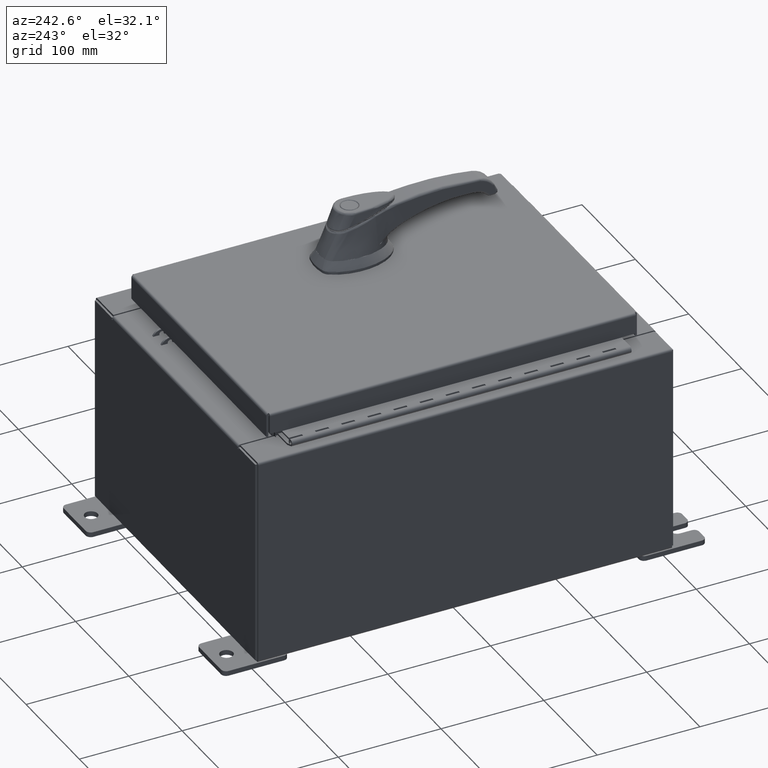
[diagram: clean part render]
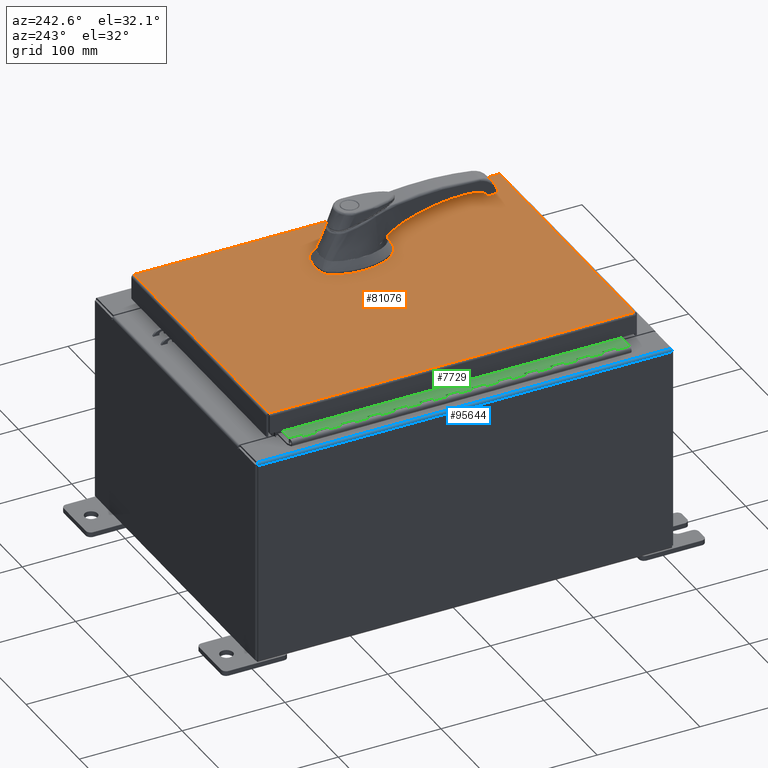
[diagram: same view with three faces highlighted in distinct colors, each labeled with its STEP entity id]
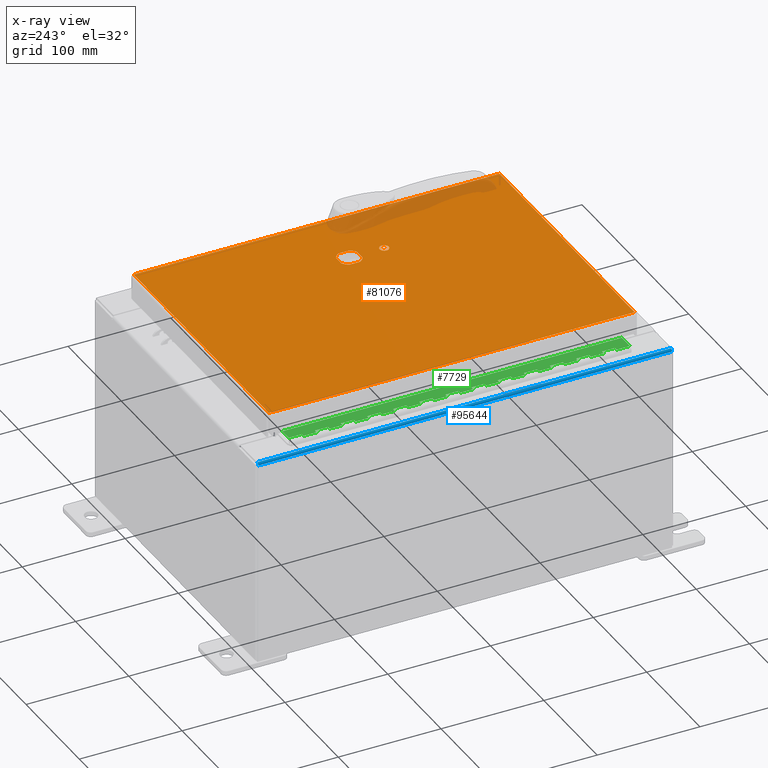
[diagram: x-ray of the same camera — body ghosted, the three highlighted faces saturated]
A machine part, auxiliary view with three faces highlighted in distinct colors.
The next image is the same camera in x-ray (body ghosted, the three faces saturated) — at least one of them is partly hidden behind the body in this view.
Their STEP definitions:

[orange] entity #81076 — the highlighted planar face has unit normal (0, 0, -1).
#348 = DIRECTION ( 'NONE',  ( -0.0000000000000000000, 0.0000000000000000000, 1.000000000000000000 ) ) ;
#2514 = AXIS2_PLACEMENT_3D ( 'NONE', #80235, #348, #63107 ) ;
#4080 = LINE ( 'NONE', #82770, #26287 ) ;
#4376 = DIRECTION ( 'NONE',  ( 0.0000000000000000000, 1.000000000000000000, 0.0000000000000000000 ) ) ;
#4477 = VECTOR ( 'NONE', #4538, 39.37007874015748100 ) ;
#4538 = DIRECTION ( 'NONE',  ( 0.0000000000000000000, -1.000000000000000000, 0.0000000000000000000 ) ) ;
#4999 = ORIENTED_EDGE ( 'NONE', *, *, #86315, .F. ) ;
#5107 = DIRECTION ( 'NONE',  ( 1.000000000000000000, -0.0000000000000000000, -0.0000000000000000000 ) ) ;
#5592 = DIRECTION ( 'NONE',  ( -0.0000000000000000000, 0.0000000000000000000, 1.000000000000000000 ) ) ;
#8438 = LINE ( 'NONE', #57246, #52328 ) ;
#8789 = LINE ( 'NONE', #71579, #28326 ) ;
#9634 = EDGE_CURVE ( 'NONE', #51594, #38232, #85628, .T. ) ;
#11769 = EDGE_CURVE ( 'NONE', #96796, #61571, #102451, .T. ) ;
#11790 = ORIENTED_EDGE ( 'NONE', *, *, #94222, .F. ) ;
#12387 = ORIENTED_EDGE ( 'NONE', *, *, #69628, .T. ) ;
#12495 = AXIS2_PLACEMENT_3D ( 'NONE', #81563, #32585, #89997 ) ;
#12592 = CARTESIAN_POINT ( 'NONE',  ( -4.990300000000000400, 7.006300000000000400, -2.048885995248197400E-016 ) ) ;
#13237 = EDGE_LOOP ( 'NONE', ( #59540, #4999 ) ) ;
#16286 = DIRECTION ( 'NONE',  ( 1.000000000000000000, 0.0000000000000000000, 0.0000000000000000000 ) ) ;
#17110 = AXIS2_PLACEMENT_3D ( 'NONE', #78192, #86613, #62047 ) ;
#19110 = CARTESIAN_POINT ( 'NONE',  ( 4.990299999999998600, 7.006300000000000400, -2.219626494852214000E-016 ) ) ;
#19221 = ORIENTED_EDGE ( 'NONE', *, *, #67699, .F. ) ;
#21255 = CARTESIAN_POINT ( 'NONE',  ( 4.990299999999998600, -7.006300000000000400, 3.244069492476312400E-016 ) ) ;
#21445 = DIRECTION ( 'NONE',  ( -0.0000000000000000000, 0.0000000000000000000, 1.000000000000000000 ) ) ;
#21894 = LINE ( 'NONE', #94538, #62833 ) ;
#22307 = CARTESIAN_POINT ( 'NONE',  ( 2.377772629243688900, 0.4029999999999252000, 0.0000000000000000000 ) ) ;
#22475 = EDGE_CURVE ( 'NONE', #79886, #58894, #37583, .T. ) ;
#22657 = VERTEX_POINT ( 'NONE', #23558 ) ;
#23558 = CARTESIAN_POINT ( 'NONE',  ( 2.980999999999924400, 0.2002273707563080300, 0.0000000000000000000 ) ) ;
#23582 = ORIENTED_EDGE ( 'NONE', *, *, #59944, .F. ) ;
#25174 = EDGE_CURVE ( 'NONE', #42653, #79105, #91242, .T. ) ;
#26287 = VECTOR ( 'NONE', #41935, 39.37007874015748100 ) ;
#26696 = LINE ( 'NONE', #12592, #4477 ) ;
#27386 = CARTESIAN_POINT ( 'NONE',  ( 2.778227370756308100, -0.4029999999999252000, 0.0000000000000000000 ) ) ;
#27885 = LINE ( 'NONE', #97267, #68666 ) ;
#28326 = VECTOR ( 'NONE', #105201, 39.37007874015748100 ) ;
#30640 = CARTESIAN_POINT ( 'NONE',  ( 2.175000000000072700, 0.2002273707563079800, 0.0000000000000000000 ) ) ;
#31076 = CARTESIAN_POINT ( 'NONE',  ( 2.577999999999998500, 0.0000000000000000000, 0.0000000000000000000 ) ) ;
#32487 = ORIENTED_EDGE ( 'NONE', *, *, #48897, .T. ) ;
#32585 = DIRECTION ( 'NONE',  ( -0.0000000000000000000, 0.0000000000000000000, 1.000000000000000000 ) ) ;
#32735 = DIRECTION ( 'NONE',  ( -0.0000000000000000000, 0.0000000000000000000, 1.000000000000000000 ) ) ;
#33268 = ORIENTED_EDGE ( 'NONE', *, *, #50813, .T. ) ;
#33894 = EDGE_CURVE ( 'NONE', #34075, #51594, #8438, .T. ) ;
#34075 = VERTEX_POINT ( 'NONE', #66442 ) ;
#34956 = EDGE_CURVE ( 'NONE', #96773, #39788, #27885, .T. ) ;
#37346 = FACE_BOUND ( 'NONE', #99640, .T. ) ;
#37583 = CIRCLE ( 'NONE', #43460, 0.4499999999999156900 ) ;
#38232 = VERTEX_POINT ( 'NONE', #41117 ) ;
#39304 = DIRECTION ( 'NONE',  ( 1.000000000000000000, 0.0000000000000000000, 0.0000000000000000000 ) ) ;
#39788 = VERTEX_POINT ( 'NONE', #40084 ) ;
#39849 = CARTESIAN_POINT ( 'NONE',  ( 2.980999999999924400, 4.067195627826724000E-015, 0.0000000000000000000 ) ) ;
#40084 = CARTESIAN_POINT ( 'NONE',  ( -4.990300000000000400, 7.006300000000000400, -2.048885995248197400E-016 ) ) ;
#41117 = CARTESIAN_POINT ( 'NONE',  ( 2.980999999999924800, -0.2002273707563079800, 0.0000000000000000000 ) ) ;
#41820 = CARTESIAN_POINT ( 'NONE',  ( -4.990300000000000400, -7.006300000000000400, -2.219626494852214000E-016 ) ) ;
#41935 = DIRECTION ( 'NONE',  ( 0.0000000000000000000, -1.000000000000000000, 0.0000000000000000000 ) ) ;
#42246 = ORIENTED_EDGE ( 'NONE', *, *, #9634, .F. ) ;
#42653 = VERTEX_POINT ( 'NONE', #51190 ) ;
#43460 = AXIS2_PLACEMENT_3D ( 'NONE', #70400, #21445, #78738 ) ;
#44481 = CARTESIAN_POINT ( 'NONE',  ( 2.175000000000072700, -0.2002273707563079800, 0.0000000000000000000 ) ) ;
#45669 = PLANE ( 'NONE',  #17110 ) ;
#47675 = AXIS2_PLACEMENT_3D ( 'NONE', #81740, #32735, #90150 ) ;
#48757 = VERTEX_POINT ( 'NONE', #79181 ) ;
#48897 = EDGE_CURVE ( 'NONE', #22657, #38232, #81952, .T. ) ;
#50813 = EDGE_CURVE ( 'NONE', #61571, #96773, #21894, .T. ) ;
#51190 = CARTESIAN_POINT ( 'NONE',  ( 2.749499999999998500, -1.338000000000000100, 0.0000000000000000000 ) ) ;
#51594 = VERTEX_POINT ( 'NONE', #27386 ) ;
#52328 = VECTOR ( 'NONE', #16286, 39.37007874015748100 ) ;
#53749 = CARTESIAN_POINT ( 'NONE',  ( 2.406499999999998500, -1.338000000000000100, 0.0000000000000000000 ) ) ;
#54995 = CARTESIAN_POINT ( 'NONE',  ( 2.577999999999998500, 0.0000000000000000000, 0.0000000000000000000 ) ) ;
#56426 = FACE_OUTER_BOUND ( 'NONE', #56553, .T. ) ;
#56553 = EDGE_LOOP ( 'NONE', ( #88076, #33268, #101324, #12387 ) ) ;
#56880 = ORIENTED_EDGE ( 'NONE', *, *, #22475, .F. ) ;
#57204 = AXIS2_PLACEMENT_3D ( 'NONE', #54995, #5592, #63141 ) ;
#57246 = CARTESIAN_POINT ( 'NONE',  ( 0.0000000000000000000, -0.4029999999999252000, 0.0000000000000000000 ) ) ;
#57503 = CIRCLE ( 'NONE', #12495, 0.1715000000000000700 ) ;
#58894 = VERTEX_POINT ( 'NONE', #30640 ) ;
#59540 = ORIENTED_EDGE ( 'NONE', *, *, #25174, .F. ) ;
#59559 = VERTEX_POINT ( 'NONE', #44481 ) ;
#59944 = EDGE_CURVE ( 'NONE', #58894, #59559, #4080, .T. ) ;
#60108 = VECTOR ( 'NONE', #80593, 39.37007874015748100 ) ;
#61571 = VERTEX_POINT ( 'NONE', #21255 ) ;
#62047 = DIRECTION ( 'NONE',  ( -1.000000000000000000, 0.0000000000000000000, -0.0000000000000000000 ) ) ;
#62833 = VECTOR ( 'NONE', #4376, 39.37007874015748100 ) ;
#63107 = DIRECTION ( 'NONE',  ( 1.000000000000000000, 0.0000000000000000000, 0.0000000000000000000 ) ) ;
#63141 = DIRECTION ( 'NONE',  ( 1.000000000000000000, 0.0000000000000000000, 0.0000000000000000000 ) ) ;
#66442 = CARTESIAN_POINT ( 'NONE',  ( 2.377772629243688900, -0.4029999999999252000, 0.0000000000000000000 ) ) ;
#67699 = EDGE_CURVE ( 'NONE', #59559, #34075, #98932, .T. ) ;
#68666 = VECTOR ( 'NONE', #105732, 39.37007874015748100 ) ;
#69628 = EDGE_CURVE ( 'NONE', #39788, #96796, #26696, .T. ) ;
#70400 = CARTESIAN_POINT ( 'NONE',  ( 2.577999999999998500, 0.0000000000000000000, 0.0000000000000000000 ) ) ;
#71579 = CARTESIAN_POINT ( 'NONE',  ( 0.0000000000000000000, 0.4029999999999252000, 0.0000000000000000000 ) ) ;
#71748 = EDGE_CURVE ( 'NONE', #22657, #48757, #88125, .T. ) ;
#74379 = AXIS2_PLACEMENT_3D ( 'NONE', #31076, #88445, #39304 ) ;
#75826 = ORIENTED_EDGE ( 'NONE', *, *, #71748, .F. ) ;
#76796 = CARTESIAN_POINT ( 'NONE',  ( -4.990300000000000400, -7.006300000000000400, -2.219626494852214000E-016 ) ) ;
#77833 = ORIENTED_EDGE ( 'NONE', *, *, #33894, .F. ) ;
#78192 = CARTESIAN_POINT ( 'NONE',  ( 0.0000000000000000000, 0.0000000000000000000, 0.0000000000000000000 ) ) ;
#78738 = DIRECTION ( 'NONE',  ( 1.000000000000000000, 0.0000000000000000000, 0.0000000000000000000 ) ) ;
#79105 = VERTEX_POINT ( 'NONE', #53749 ) ;
#79181 = CARTESIAN_POINT ( 'NONE',  ( 2.778227370756308100, 0.4029999999999252000, 0.0000000000000000000 ) ) ;
#79886 = VERTEX_POINT ( 'NONE', #22307 ) ;
#80235 = CARTESIAN_POINT ( 'NONE',  ( 2.577999999999998500, 0.0000000000000000000, 0.0000000000000000000 ) ) ;
#80593 = DIRECTION ( 'NONE',  ( 1.364372904336406500E-015, -1.000000000000000000, 0.0000000000000000000 ) ) ;
#81076 = ADVANCED_FACE ( 'NONE', ( #100470, #56426, #37346 ), #45669, .F. ) ;
#81563 = CARTESIAN_POINT ( 'NONE',  ( 2.577999999999998500, -1.338000000000000100, 0.0000000000000000000 ) ) ;
#81740 = CARTESIAN_POINT ( 'NONE',  ( 2.577999999999998500, -1.338000000000000100, 0.0000000000000000000 ) ) ;
#81952 = LINE ( 'NONE', #39849, #60108 ) ;
#82770 = CARTESIAN_POINT ( 'NONE',  ( 2.175000000000072700, 0.0000000000000000000, 0.0000000000000000000 ) ) ;
#85628 = CIRCLE ( 'NONE', #2514, 0.4499999999999156900 ) ;
#86315 = EDGE_CURVE ( 'NONE', #79105, #42653, #57503, .T. ) ;
#86613 = DIRECTION ( 'NONE',  ( 0.0000000000000000000, 0.0000000000000000000, -1.000000000000000000 ) ) ;
#88076 = ORIENTED_EDGE ( 'NONE', *, *, #11769, .T. ) ;
#88125 = CIRCLE ( 'NONE', #74379, 0.4499999999999156900 ) ;
#88445 = DIRECTION ( 'NONE',  ( -0.0000000000000000000, 0.0000000000000000000, 1.000000000000000000 ) ) ;
#89997 = DIRECTION ( 'NONE',  ( 1.000000000000000000, 0.0000000000000000000, 0.0000000000000000000 ) ) ;
#90150 = DIRECTION ( 'NONE',  ( 1.000000000000000000, 0.0000000000000000000, 0.0000000000000000000 ) ) ;
#91242 = CIRCLE ( 'NONE', #47675, 0.1715000000000000700 ) ;
#94222 = EDGE_CURVE ( 'NONE', #48757, #79886, #8789, .T. ) ;
#94538 = CARTESIAN_POINT ( 'NONE',  ( 4.990299999999998600, -7.006300000000000400, 3.244069492476312400E-016 ) ) ;
#96773 = VERTEX_POINT ( 'NONE', #19110 ) ;
#96796 = VERTEX_POINT ( 'NONE', #76796 ) ;
#97267 = CARTESIAN_POINT ( 'NONE',  ( 4.990299999999998600, 7.006300000000000400, -2.219626494852214000E-016 ) ) ;
#98932 = CIRCLE ( 'NONE', #57204, 0.4499999999999156900 ) ;
#99640 = EDGE_LOOP ( 'NONE', ( #32487, #42246, #77833, #19221, #23582, #56880, #11790, #75826 ) ) ;
#99800 = VECTOR ( 'NONE', #5107, 39.37007874015748100 ) ;
#100470 = FACE_BOUND ( 'NONE', #13237, .T. ) ;
#101324 = ORIENTED_EDGE ( 'NONE', *, *, #34956, .T. ) ;
#102451 = LINE ( 'NONE', #41820, #99800 ) ;
#105201 = DIRECTION ( 'NONE',  ( -1.000000000000000000, 0.0000000000000000000, 0.0000000000000000000 ) ) ;
#105732 = DIRECTION ( 'NONE',  ( -1.000000000000000000, -0.0000000000000000000, -0.0000000000000000000 ) ) ;

[blue] entity #95644 — the highlighted cylindrical surface (edge-blend (fillet) strip) has radius 2.2276 mm, axis along (-0, -1, -0).
#5973 = DIRECTION ( 'NONE',  ( 0.0000000000000000000, 1.000000000000000000, 0.0000000000000000000 ) ) ;
#6204 = DIRECTION ( 'NONE',  ( -0.0000000000000000000, -1.000000000000000000, -0.0000000000000000000 ) ) ;
#8452 = LINE ( 'NONE', #88095, #93536 ) ;
#10289 = AXIS2_PLACEMENT_3D ( 'NONE', #47385, #6204, #95997 ) ;
#13279 = VECTOR ( 'NONE', #16917, 39.37007874015748100 ) ;
#16383 = CYLINDRICAL_SURFACE ( 'NONE', #10289, 0.08770000000000026400 ) ;
#16917 = DIRECTION ( 'NONE',  ( -0.0000000000000000000, 1.000000000000000000, -0.0000000000000000000 ) ) ;
#21483 = CARTESIAN_POINT ( 'NONE',  ( -5.912300000000028500, -7.925300000000000000, 7.925300000000000000 ) ) ;
#23945 = CARTESIAN_POINT ( 'NONE',  ( -5.912300000000028500, 7.925299999999998200, 7.837599999999999200 ) ) ;
#26437 = EDGE_CURVE ( 'NONE', #43878, #84969, #72806, .T. ) ;
#28046 = EDGE_CURVE ( 'NONE', #84969, #56872, #8452, .T. ) ;
#28753 = CIRCLE ( 'NONE', #30974, 0.08770000000000026400 ) ;
#30974 = AXIS2_PLACEMENT_3D ( 'NONE', #23945, #81260, #32269 ) ;
#32269 = DIRECTION ( 'NONE',  ( 0.0000000000000000000, 0.0000000000000000000, -1.000000000000000000 ) ) ;
#35368 = LINE ( 'NONE', #90332, #13279 ) ;
#35886 = FACE_OUTER_BOUND ( 'NONE', #74237, .T. ) ;
#38168 = ORIENTED_EDGE ( 'NONE', *, *, #26437, .F. ) ;
#39927 = EDGE_CURVE ( 'NONE', #43878, #59012, #35368, .T. ) ;
#43878 = VERTEX_POINT ( 'NONE', #21483 ) ;
#47385 = CARTESIAN_POINT ( 'NONE',  ( -5.912300000000028500, -7.925300000000000900, 7.837599999999999200 ) ) ;
#47766 = CARTESIAN_POINT ( 'NONE',  ( -5.912300000000028500, -7.925300000000000000, 7.837599999999999200 ) ) ;
#48873 = ORIENTED_EDGE ( 'NONE', *, *, #39927, .T. ) ;
#55952 = DIRECTION ( 'NONE',  ( 0.0000000000000000000, 0.0000000000000000000, -1.000000000000000000 ) ) ;
#56872 = VERTEX_POINT ( 'NONE', #91697 ) ;
#59012 = VERTEX_POINT ( 'NONE', #71980 ) ;
#71980 = CARTESIAN_POINT ( 'NONE',  ( -5.912300000000028500, 7.925299999999998200, 7.925300000000000000 ) ) ;
#72806 = CIRCLE ( 'NONE', #87654, 0.08770000000000026400 ) ;
#74237 = EDGE_LOOP ( 'NONE', ( #83400, #38168, #48873, #76864 ) ) ;
#76864 = ORIENTED_EDGE ( 'NONE', *, *, #92965, .F. ) ;
#81260 = DIRECTION ( 'NONE',  ( 0.0000000000000000000, 1.000000000000000000, 0.0000000000000000000 ) ) ;
#83400 = ORIENTED_EDGE ( 'NONE', *, *, #28046, .F. ) ;
#84969 = VERTEX_POINT ( 'NONE', #100060 ) ;
#87654 = AXIS2_PLACEMENT_3D ( 'NONE', #47766, #105601, #55952 ) ;
#88095 = CARTESIAN_POINT ( 'NONE',  ( -6.000000000000029300, -7.925300000000000900, 7.837599999999999200 ) ) ;
#90332 = CARTESIAN_POINT ( 'NONE',  ( -5.912300000000028500, 7.925299999999998200, 7.925300000000000000 ) ) ;
#91697 = CARTESIAN_POINT ( 'NONE',  ( -6.000000000000029300, 7.925299999999998200, 7.837599999999999200 ) ) ;
#92965 = EDGE_CURVE ( 'NONE', #56872, #59012, #28753, .T. ) ;
#93536 = VECTOR ( 'NONE', #5973, 39.37007874015748100 ) ;
#95644 = ADVANCED_FACE ( 'NONE', ( #35886 ), #16383, .T. ) ;
#95997 = DIRECTION ( 'NONE',  ( -1.245996804407870000E-014, 0.0000000000000000000, 1.000000000000000000 ) ) ;
#100060 = CARTESIAN_POINT ( 'NONE',  ( -6.000000000000029300, -7.925300000000000000, 7.837599999999999200 ) ) ;
#105601 = DIRECTION ( 'NONE',  ( -0.0000000000000000000, -1.000000000000000000, -0.0000000000000000000 ) ) ;

[green] entity #7729 — the highlighted planar face has unit normal (-0, -0, 1).
#273 = VERTEX_POINT ( 'NONE', #45626 ) ;
#1068 = ORIENTED_EDGE ( 'NONE', *, *, #103844, .T. ) ;
#1218 = CARTESIAN_POINT ( 'NONE',  ( -0.6869999999999982800, 0.5504999999999997700, -1.499999999999999800 ) ) ;
#1539 = LINE ( 'NONE', #62559, #64611 ) ;
#1590 = VERTEX_POINT ( 'NONE', #43488 ) ;
#1636 = VECTOR ( 'NONE', #69516, 39.37007874015748100 ) ;
#2115 = ORIENTED_EDGE ( 'NONE', *, *, #16323, .F. ) ;
#2257 = DIRECTION ( 'NONE',  ( 0.0000000000000000000, -0.0000000000000000000, -1.000000000000000000 ) ) ;
#2720 = CARTESIAN_POINT ( 'NONE',  ( -0.6869999999999982800, 0.5504999999999997700, -4.000000000000000000 ) ) ;
#2908 = EDGE_CURVE ( 'NONE', #18678, #5825, #67860, .T. ) ;
#2992 = VECTOR ( 'NONE', #42687, 39.37007874015748100 ) ;
#3135 = VECTOR ( 'NONE', #15873, 39.37007874015748100 ) ;
#3254 = EDGE_CURVE ( 'NONE', #106390, #70275, #93845, .T. ) ;
#3338 = ORIENTED_EDGE ( 'NONE', *, *, #28117, .T. ) ;
#4078 = VECTOR ( 'NONE', #62335, 39.37007874015748100 ) ;
#4098 = VERTEX_POINT ( 'NONE', #24273 ) ;
#4276 = DIRECTION ( 'NONE',  ( 0.0000000000000000000, -0.0000000000000000000, -1.000000000000000000 ) ) ;
#4522 = DIRECTION ( 'NONE',  ( 0.0000000000000000000, -0.0000000000000000000, -1.000000000000000000 ) ) ;
#4584 = CARTESIAN_POINT ( 'NONE',  ( -0.6869999999999978300, 0.6754999999999996600, -0.5000000000000000000 ) ) ;
#4634 = VERTEX_POINT ( 'NONE', #41936 ) ;
#4978 = EDGE_LOOP ( 'NONE', ( #97478, #1068, #18255, #81031, #20383, #97529, #105139, #64630, #25732, #43316, #105216, #34078, #62241, #26738, #78132, #87951, #22155, #14159, #51713, #57693, #102540, #57063, #39161, #17952, #37359, #2115, #102101, #57591, #26544, #44919, #84541, #33473, #100370, #55065, #67520, #42523, #66538, #81154, #100365, #62768, #27539, #20580, #106107, #20058, #3338, #11474, #75160, #8093, #93025, #42034, #42365, #79696, #81120, #96425 ) ) ;
#5085 = VERTEX_POINT ( 'NONE', #104873 ) ;
#5190 = VERTEX_POINT ( 'NONE', #2720 ) ;
#5594 = CARTESIAN_POINT ( 'NONE',  ( -0.6869999999999982800, 0.5504999999999997700, -1.000000000000000000 ) ) ;
#5825 = VERTEX_POINT ( 'NONE', #86594 ) ;
#6338 = CARTESIAN_POINT ( 'NONE',  ( -0.6869999999999973900, 0.8004999999999995500, -6.499999999999999100 ) ) ;
#7309 = VERTEX_POINT ( 'NONE', #9787 ) ;
#7729 = ADVANCED_FACE ( 'NONE', ( #29245 ), #103245, .T. ) ;
#7842 = VECTOR ( 'NONE', #47165, 39.37007874015748100 ) ;
#8093 = ORIENTED_EDGE ( 'NONE', *, *, #32307, .F. ) ;
#8482 = VERTEX_POINT ( 'NONE', #95871 ) ;
#8592 = DIRECTION ( 'NONE',  ( 0.0000000000000000000, 0.0000000000000000000, 1.000000000000000000 ) ) ;
#8629 = CARTESIAN_POINT ( 'NONE',  ( -0.6869999999999978300, 0.6754999999999996600, -4.000000000000000000 ) ) ;
#8830 = LINE ( 'NONE', #99816, #96530 ) ;
#9016 = VECTOR ( 'NONE', #36131, 39.37007874015748100 ) ;
#9297 = LINE ( 'NONE', #53716, #50637 ) ;
#9315 = VECTOR ( 'NONE', #93235, 39.37007874015748100 ) ;
#9759 = VECTOR ( 'NONE', #21898, 39.37007874015748100 ) ;
#9787 = CARTESIAN_POINT ( 'NONE',  ( -0.6869999999999978300, 0.6754999999999996600, 0.0000000000000000000 ) ) ;
#10046 = VECTOR ( 'NONE', #73305, 39.37007874015748100 ) ;
#10373 = VECTOR ( 'NONE', #94996, 39.37007874015748100 ) ;
#11307 = CARTESIAN_POINT ( 'NONE',  ( -0.6869999999999978300, 0.6754999999999996600, -9.500000000000000000 ) ) ;
#11474 = ORIENTED_EDGE ( 'NONE', *, *, #88062, .F. ) ;
#11912 = EDGE_CURVE ( 'NONE', #91322, #47803, #72334, .T. ) ;
#12002 = CARTESIAN_POINT ( 'NONE',  ( -0.6869999999999978300, 0.6754999999999996600, -2.000000000000000000 ) ) ;
#12664 = EDGE_CURVE ( 'NONE', #43414, #63100, #99698, .T. ) ;
#12854 = EDGE_CURVE ( 'NONE', #43414, #1590, #23636, .T. ) ;
#13276 = VECTOR ( 'NONE', #55901, 39.37007874015748100 ) ;
#14159 = ORIENTED_EDGE ( 'NONE', *, *, #62914, .F. ) ;
#14247 = DIRECTION ( 'NONE',  ( 0.0000000000000000000, -0.0000000000000000000, -1.000000000000000000 ) ) ;
#14848 = CARTESIAN_POINT ( 'NONE',  ( -0.6870000000000022800, -0.6245000000000003900, 0.0000000000000000000 ) ) ;
#15105 = EDGE_CURVE ( 'NONE', #99991, #17599, #92833, .T. ) ;
#15601 = VERTEX_POINT ( 'NONE', #19207 ) ;
#15873 = DIRECTION ( 'NONE',  ( 3.369016658928398200E-015, 1.000000000000000000, 0.0000000000000000000 ) ) ;
#16323 = EDGE_CURVE ( 'NONE', #99967, #17599, #94000, .T. ) ;
#16781 = CARTESIAN_POINT ( 'NONE',  ( -0.6869999999999978300, 0.6754999999999996600, -7.499999999999999100 ) ) ;
#17353 = VERTEX_POINT ( 'NONE', #35271 ) ;
#17419 = VECTOR ( 'NONE', #18753, 39.37007874015748100 ) ;
#17599 = VERTEX_POINT ( 'NONE', #41215 ) ;
#17952 = ORIENTED_EDGE ( 'NONE', *, *, #37614, .F. ) ;
#17998 = LINE ( 'NONE', #103277, #54007 ) ;
#18255 = ORIENTED_EDGE ( 'NONE', *, *, #26333, .F. ) ;
#18554 = VERTEX_POINT ( 'NONE', #38056 ) ;
#18641 = CARTESIAN_POINT ( 'NONE',  ( -0.6869999999999982800, 0.5504999999999997700, -7.000000000000000000 ) ) ;
#18678 = VERTEX_POINT ( 'NONE', #105092 ) ;
#18753 = DIRECTION ( 'NONE',  ( 3.389037039080723100E-015, 1.000000000000000000, -0.0000000000000000000 ) ) ;
#18786 = EDGE_CURVE ( 'NONE', #45598, #63100, #57562, .T. ) ;
#19207 = CARTESIAN_POINT ( 'NONE',  ( -0.6869999999999982800, 0.5504999999999997700, -0.5000000000000000000 ) ) ;
#20005 = VERTEX_POINT ( 'NONE', #4584 ) ;
#20058 = ORIENTED_EDGE ( 'NONE', *, *, #40265, .F. ) ;
#20383 = ORIENTED_EDGE ( 'NONE', *, *, #12664, .T. ) ;
#20445 = CARTESIAN_POINT ( 'NONE',  ( -0.6870000000000022800, -0.6245000000000003900, -13.00000000000000000 ) ) ;
#20580 = ORIENTED_EDGE ( 'NONE', *, *, #48387, .F. ) ;
#20844 = DIRECTION ( 'NONE',  ( 0.0000000000000000000, 0.0000000000000000000, 1.000000000000000000 ) ) ;
#20866 = VERTEX_POINT ( 'NONE', #84035 ) ;
#21047 = EDGE_CURVE ( 'NONE', #39556, #69478, #71987, .T. ) ;
#21114 = CARTESIAN_POINT ( 'NONE',  ( -0.6869999999999982800, 0.5504999999999997700, -2.500000000000000000 ) ) ;
#21128 = CARTESIAN_POINT ( 'NONE',  ( -0.6869999999999978300, 0.6754999999999996600, -2.500000000000000000 ) ) ;
#21274 = VECTOR ( 'NONE', #28985, 39.37007874015748100 ) ;
#21435 = CARTESIAN_POINT ( 'NONE',  ( -0.6869999999999982800, 0.5504999999999997700, -9.500000000000000000 ) ) ;
#21477 = LINE ( 'NONE', #48667, #40762 ) ;
#21539 = VECTOR ( 'NONE', #43825, 39.37007874015748100 ) ;
#21898 = DIRECTION ( 'NONE',  ( 0.0000000000000000000, 0.0000000000000000000, 1.000000000000000000 ) ) ;
#22155 = ORIENTED_EDGE ( 'NONE', *, *, #97331, .T. ) ;
#22204 = VECTOR ( 'NONE', #4522, 39.37007874015748100 ) ;
#23236 = DIRECTION ( 'NONE',  ( 3.369016658928398200E-015, 1.000000000000000000, 0.0000000000000000000 ) ) ;
#23421 = EDGE_CURVE ( 'NONE', #4634, #17353, #86248, .T. ) ;
#23424 = DIRECTION ( 'NONE',  ( 0.0000000000000000000, -0.0000000000000000000, -1.000000000000000000 ) ) ;
#23553 = CARTESIAN_POINT ( 'NONE',  ( -0.6869999999999973900, 0.8004999999999995500, -8.500000000000000000 ) ) ;
#23636 = LINE ( 'NONE', #26550, #4078 ) ;
#24073 = EDGE_CURVE ( 'NONE', #69478, #7309, #33587, .T. ) ;
#24260 = DIRECTION ( 'NONE',  ( 0.0000000000000000000, 0.0000000000000000000, 1.000000000000000000 ) ) ;
#24273 = CARTESIAN_POINT ( 'NONE',  ( -0.6869999999999978300, 0.6754999999999996600, -10.50000000000000000 ) ) ;
#25224 = LINE ( 'NONE', #26229, #2992 ) ;
#25669 = VERTEX_POINT ( 'NONE', #51225 ) ;
#25732 = ORIENTED_EDGE ( 'NONE', *, *, #75117, .T. ) ;
#25778 = LINE ( 'NONE', #51794, #44985 ) ;
#26019 = LINE ( 'NONE', #91642, #69386 ) ;
#26229 = CARTESIAN_POINT ( 'NONE',  ( -0.6869999999999973900, 0.8004999999999995500, -11.50000000000000000 ) ) ;
#26333 = EDGE_CURVE ( 'NONE', #1590, #59929, #75429, .T. ) ;
#26341 = CARTESIAN_POINT ( 'NONE',  ( -0.6869999999999978300, 0.6754999999999996600, -13.00000000000000000 ) ) ;
#26433 = DIRECTION ( 'NONE',  ( 0.0000000000000000000, -0.0000000000000000000, -1.000000000000000000 ) ) ;
#26544 = ORIENTED_EDGE ( 'NONE', *, *, #36853, .T. ) ;
#26550 = CARTESIAN_POINT ( 'NONE',  ( -0.6869999999999973900, 0.8004999999999995500, -12.49999999999999800 ) ) ;
#26738 = ORIENTED_EDGE ( 'NONE', *, *, #3254, .F. ) ;
#26878 = VERTEX_POINT ( 'NONE', #12002 ) ;
#27140 = DIRECTION ( 'NONE',  ( -3.389037039080723100E-015, -1.000000000000000000, 0.0000000000000000000 ) ) ;
#27254 = CARTESIAN_POINT ( 'NONE',  ( -0.6869999999999973900, 0.8004999999999995500, -11.00000000000000000 ) ) ;
#27436 = LINE ( 'NONE', #71265, #68208 ) ;
#27539 = ORIENTED_EDGE ( 'NONE', *, *, #62751, .T. ) ;
#28000 = VECTOR ( 'NONE', #31081, 39.37007874015748100 ) ;
#28117 = EDGE_CURVE ( 'NONE', #91617, #26878, #71387, .T. ) ;
#28471 = VERTEX_POINT ( 'NONE', #105914 ) ;
#28985 = DIRECTION ( 'NONE',  ( 0.0000000000000000000, -0.0000000000000000000, -1.000000000000000000 ) ) ;
#29245 = FACE_OUTER_BOUND ( 'NONE', #4978, .T. ) ;
#29395 = CARTESIAN_POINT ( 'NONE',  ( -0.6869999999999998300, 0.07549999999999991400, -13.00000000000000000 ) ) ;
#29435 = DIRECTION ( 'NONE',  ( 0.0000000000000000000, -0.0000000000000000000, -1.000000000000000000 ) ) ;
#30095 = LINE ( 'NONE', #1218, #70903 ) ;
#30890 = VECTOR ( 'NONE', #101428, 39.37007874015748100 ) ;
#31081 = DIRECTION ( 'NONE',  ( 0.0000000000000000000, 0.0000000000000000000, 1.000000000000000000 ) ) ;
#31341 = VECTOR ( 'NONE', #48066, 39.37007874015748100 ) ;
#31637 = EDGE_CURVE ( 'NONE', #64351, #46833, #35364, .T. ) ;
#31883 = DIRECTION ( 'NONE',  ( -3.389037039080723100E-015, -1.000000000000000000, 0.0000000000000000000 ) ) ;
#32307 = EDGE_CURVE ( 'NONE', #64351, #78357, #9297, .T. ) ;
#32673 = LINE ( 'NONE', #77757, #87840 ) ;
#32798 = CARTESIAN_POINT ( 'NONE',  ( -0.6869999999999978300, 0.6754999999999996600, -13.00000000000000000 ) ) ;
#32904 = EDGE_CURVE ( 'NONE', #78357, #51660, #30095, .T. ) ;
#32967 = VECTOR ( 'NONE', #80732, 39.37007874015748100 ) ;
#33473 = ORIENTED_EDGE ( 'NONE', *, *, #60858, .F. ) ;
#33554 = EDGE_CURVE ( 'NONE', #15601, #37389, #87066, .T. ) ;
#33587 = LINE ( 'NONE', #14848, #74378 ) ;
#34078 = ORIENTED_EDGE ( 'NONE', *, *, #61680, .F. ) ;
#34141 = DIRECTION ( 'NONE',  ( -3.389037039080723100E-015, -1.000000000000000000, 0.0000000000000000000 ) ) ;
#35271 = CARTESIAN_POINT ( 'NONE',  ( -0.6869999999999982800, 0.5504999999999997700, -8.000000000000000000 ) ) ;
#35364 = LINE ( 'NONE', #64034, #13276 ) ;
#35786 = VECTOR ( 'NONE', #34141, 39.37007874015748100 ) ;
#36131 = DIRECTION ( 'NONE',  ( 0.0000000000000000000, -0.0000000000000000000, -1.000000000000000000 ) ) ;
#36350 = CARTESIAN_POINT ( 'NONE',  ( -0.6869999999999973900, 0.8004999999999995500, -3.500000000000000000 ) ) ;
#36536 = EDGE_CURVE ( 'NONE', #99892, #63249, #49713, .T. ) ;
#36622 = VECTOR ( 'NONE', #60799, 39.37007874015748100 ) ;
#36696 = DIRECTION ( 'NONE',  ( -3.389037039080723100E-015, -1.000000000000000000, 0.0000000000000000000 ) ) ;
#36853 = EDGE_CURVE ( 'NONE', #18678, #5085, #80336, .T. ) ;
#37220 = VECTOR ( 'NONE', #90211, 39.37007874015748100 ) ;
#37359 = ORIENTED_EDGE ( 'NONE', *, *, #15105, .T. ) ;
#37389 = VERTEX_POINT ( 'NONE', #5594 ) ;
#37614 = EDGE_CURVE ( 'NONE', #99991, #4634, #79001, .T. ) ;
#37686 = VERTEX_POINT ( 'NONE', #107141 ) ;
#37763 = CARTESIAN_POINT ( 'NONE',  ( -0.6869999999999978300, 0.6754999999999996600, -13.00000000000000000 ) ) ;
#37838 = LINE ( 'NONE', #36350, #78716 ) ;
#37927 = CARTESIAN_POINT ( 'NONE',  ( -0.6869999999999982800, 0.5504999999999997700, -4.500000000000000000 ) ) ;
#38056 = CARTESIAN_POINT ( 'NONE',  ( -0.6869999999999978300, 0.6754999999999996600, -9.000000000000000000 ) ) ;
#38421 = EDGE_CURVE ( 'NONE', #79263, #83934, #67275, .T. ) ;
#39161 = ORIENTED_EDGE ( 'NONE', *, *, #23421, .F. ) ;
#39556 = VERTEX_POINT ( 'NONE', #29395 ) ;
#39618 = EDGE_CURVE ( 'NONE', #17353, #99835, #1539, .T. ) ;
#40265 = EDGE_CURVE ( 'NONE', #91617, #273, #95763, .T. ) ;
#40334 = CARTESIAN_POINT ( 'NONE',  ( -0.6869999999999973900, 0.8004999999999995500, -7.499999999999999100 ) ) ;
#40762 = VECTOR ( 'NONE', #24260, 39.37007874015748100 ) ;
#41215 = CARTESIAN_POINT ( 'NONE',  ( -0.6869999999999978300, 0.6754999999999996600, -7.000000000000000000 ) ) ;
#41936 = CARTESIAN_POINT ( 'NONE',  ( -0.6869999999999982800, 0.5504999999999997700, -7.499999999999999100 ) ) ;
#42034 = ORIENTED_EDGE ( 'NONE', *, *, #100525, .F. ) ;
#42106 = EDGE_CURVE ( 'NONE', #273, #28471, #74728, .T. ) ;
#42365 = ORIENTED_EDGE ( 'NONE', *, *, #33554, .F. ) ;
#42523 = ORIENTED_EDGE ( 'NONE', *, *, #38421, .F. ) ;
#42581 = CARTESIAN_POINT ( 'NONE',  ( -0.6869999999999978300, 0.6754999999999996600, -11.50000000000000000 ) ) ;
#42687 = DIRECTION ( 'NONE',  ( -3.389037039080723100E-015, -1.000000000000000000, 0.0000000000000000000 ) ) ;
#42916 = EDGE_CURVE ( 'NONE', #83934, #54415, #82490, .T. ) ;
#43013 = CARTESIAN_POINT ( 'NONE',  ( -0.6869999999999998300, 0.07549999999999991400, -13.00000000000000000 ) ) ;
#43316 = ORIENTED_EDGE ( 'NONE', *, *, #11912, .F. ) ;
#43325 = LINE ( 'NONE', #94923, #104023 ) ;
#43414 = VERTEX_POINT ( 'NONE', #75986 ) ;
#43488 = CARTESIAN_POINT ( 'NONE',  ( -0.6869999999999982800, 0.5504999999999997700, -12.49999999999999800 ) ) ;
#43557 = CARTESIAN_POINT ( 'NONE',  ( -0.6869999999999982800, 0.5504999999999997700, -9.500000000000000000 ) ) ;
#43825 = DIRECTION ( 'NONE',  ( 0.0000000000000000000, -0.0000000000000000000, -1.000000000000000000 ) ) ;
#43950 = CARTESIAN_POINT ( 'NONE',  ( -0.6869999999999982800, 0.5504999999999997700, -6.499999999999999100 ) ) ;
#43969 = CARTESIAN_POINT ( 'NONE',  ( -0.6869999999999978300, 0.6754999999999996600, -11.00000000000000000 ) ) ;
#44919 = ORIENTED_EDGE ( 'NONE', *, *, #93562, .F. ) ;
#44923 = CARTESIAN_POINT ( 'NONE',  ( -0.6869999999999982800, 0.5504999999999997700, -5.000000000000000000 ) ) ;
#44985 = VECTOR ( 'NONE', #2257, 39.37007874015748100 ) ;
#45082 = VECTOR ( 'NONE', #74427, 39.37007874015748100 ) ;
#45261 = DIRECTION ( 'NONE',  ( 0.0000000000000000000, 0.0000000000000000000, 1.000000000000000000 ) ) ;
#45371 = CARTESIAN_POINT ( 'NONE',  ( -0.6869999999999982800, 0.5504999999999997700, -5.500000000000000000 ) ) ;
#45475 = DIRECTION ( 'NONE',  ( -3.389037039080723100E-015, -1.000000000000000000, 0.0000000000000000000 ) ) ;
#45480 = VECTOR ( 'NONE', #55004, 39.37007874015748100 ) ;
#45526 = DIRECTION ( 'NONE',  ( -3.389037039080723100E-015, -1.000000000000000000, 0.0000000000000000000 ) ) ;
#45598 = VERTEX_POINT ( 'NONE', #57834 ) ;
#45626 = CARTESIAN_POINT ( 'NONE',  ( -0.6869999999999982800, 0.5504999999999997700, -2.500000000000000000 ) ) ;
#46222 = CARTESIAN_POINT ( 'NONE',  ( -0.6869999999999978300, 0.6754999999999996600, -3.500000000000000000 ) ) ;
#46266 = VECTOR ( 'NONE', #45526, 39.37007874015748100 ) ;
#46521 = VECTOR ( 'NONE', #57396, 39.37007874015748100 ) ;
#46833 = VERTEX_POINT ( 'NONE', #56884 ) ;
#47027 = VERTEX_POINT ( 'NONE', #8629 ) ;
#47165 = DIRECTION ( 'NONE',  ( 3.389037039080723100E-015, 1.000000000000000000, -0.0000000000000000000 ) ) ;
#47644 = LINE ( 'NONE', #66166, #45082 ) ;
#47774 = VECTOR ( 'NONE', #83913, 39.37007874015748100 ) ;
#47803 = VERTEX_POINT ( 'NONE', #43969 ) ;
#48066 = DIRECTION ( 'NONE',  ( 0.0000000000000000000, -0.0000000000000000000, -1.000000000000000000 ) ) ;
#48182 = CARTESIAN_POINT ( 'NONE',  ( -0.6869999999999982800, 0.5504999999999997700, -7.499999999999999100 ) ) ;
#48387 = EDGE_CURVE ( 'NONE', #28471, #103522, #102968, .T. ) ;
#48667 = CARTESIAN_POINT ( 'NONE',  ( -0.6869999999999978300, 0.6754999999999996600, -13.00000000000000000 ) ) ;
#49143 = CARTESIAN_POINT ( 'NONE',  ( -0.6869999999999978300, 0.6754999999999996600, -2.999999999999999600 ) ) ;
#49241 = DIRECTION ( 'NONE',  ( 3.389037039080723100E-015, 1.000000000000000000, -0.0000000000000000000 ) ) ;
#49532 = VECTOR ( 'NONE', #51807, 39.37007874015748100 ) ;
#49713 = LINE ( 'NONE', #23553, #90834 ) ;
#50269 = VECTOR ( 'NONE', #98092, 39.37007874015748100 ) ;
#50549 = VECTOR ( 'NONE', #29435, 39.37007874015748100 ) ;
#50637 = VECTOR ( 'NONE', #45475, 39.37007874015748100 ) ;
#50759 = VECTOR ( 'NONE', #87622, 39.37007874015748100 ) ;
#51225 = CARTESIAN_POINT ( 'NONE',  ( -0.6869999999999978300, 0.6754999999999996600, -5.000000000000000000 ) ) ;
#51660 = VERTEX_POINT ( 'NONE', #101546 ) ;
#51713 = ORIENTED_EDGE ( 'NONE', *, *, #79098, .F. ) ;
#51794 = CARTESIAN_POINT ( 'NONE',  ( -0.6869999999999982800, 0.5504999999999997700, -3.500000000000000000 ) ) ;
#51807 = DIRECTION ( 'NONE',  ( 0.0000000000000000000, -0.0000000000000000000, -1.000000000000000000 ) ) ;
#51857 = CARTESIAN_POINT ( 'NONE',  ( -0.6869999999999982800, 0.5504999999999997700, -10.00000000000000000 ) ) ;
#51862 = EDGE_CURVE ( 'NONE', #81843, #93381, #95150, .T. ) ;
#51872 = CARTESIAN_POINT ( 'NONE',  ( -0.6869999999999973900, 0.8004999999999995500, -0.5000000000000000000 ) ) ;
#52058 = CARTESIAN_POINT ( 'NONE',  ( -0.6869999999999982800, 0.5504999999999997700, -0.5000000000000000000 ) ) ;
#53110 = LINE ( 'NONE', #80610, #31341 ) ;
#53386 = CARTESIAN_POINT ( 'NONE',  ( -0.6869999999999978300, 0.6754999999999996600, -1.499999999999999800 ) ) ;
#53641 = CARTESIAN_POINT ( 'NONE',  ( -0.6869999999999982800, 0.5504999999999997700, -6.000000000000000900 ) ) ;
#53716 = CARTESIAN_POINT ( 'NONE',  ( -0.6869999999999973900, 0.8004999999999995500, -1.499999999999999800 ) ) ;
#53985 = CARTESIAN_POINT ( 'NONE',  ( -0.6869999999999982800, 0.5504999999999997700, -4.500000000000000000 ) ) ;
#54007 = VECTOR ( 'NONE', #4276, 39.37007874015748100 ) ;
#54214 = EDGE_CURVE ( 'NONE', #99892, #99835, #77969, .T. ) ;
#54415 = VERTEX_POINT ( 'NONE', #44923 ) ;
#54781 = CARTESIAN_POINT ( 'NONE',  ( -0.6869999999999978300, 0.6754999999999996600, -4.500000000000000000 ) ) ;
#55004 = DIRECTION ( 'NONE',  ( 3.389037039080723100E-015, 1.000000000000000000, -0.0000000000000000000 ) ) ;
#55030 = VECTOR ( 'NONE', #72527, 39.37007874015748100 ) ;
#55065 = ORIENTED_EDGE ( 'NONE', *, *, #74566, .F. ) ;
#55152 = EDGE_CURVE ( 'NONE', #60151, #66597, #71419, .T. ) ;
#55291 = DIRECTION ( 'NONE',  ( -3.389037039080723100E-015, -1.000000000000000000, 0.0000000000000000000 ) ) ;
#55898 = EDGE_CURVE ( 'NONE', #79263, #47027, #21477, .T. ) ;
#55901 = DIRECTION ( 'NONE',  ( 0.0000000000000000000, 0.0000000000000000000, 1.000000000000000000 ) ) ;
#56884 = CARTESIAN_POINT ( 'NONE',  ( -0.6869999999999978300, 0.6754999999999996600, -1.000000000000000000 ) ) ;
#57063 = ORIENTED_EDGE ( 'NONE', *, *, #39618, .F. ) ;
#57396 = DIRECTION ( 'NONE',  ( 0.0000000000000000000, 0.0000000000000000000, 1.000000000000000000 ) ) ;
#57562 = LINE ( 'NONE', #89314, #55030 ) ;
#57591 = ORIENTED_EDGE ( 'NONE', *, *, #2908, .F. ) ;
#57693 = ORIENTED_EDGE ( 'NONE', *, *, #36536, .F. ) ;
#57834 = CARTESIAN_POINT ( 'NONE',  ( -0.6869999999999982800, 0.5504999999999997700, -11.99999999999999800 ) ) ;
#58081 = CARTESIAN_POINT ( 'NONE',  ( -0.6869999999999982800, 0.5504999999999997700, -11.00000000000000000 ) ) ;
#58173 = LINE ( 'NONE', #74723, #77367 ) ;
#58188 = EDGE_CURVE ( 'NONE', #37686, #91322, #106459, .T. ) ;
#58371 = CARTESIAN_POINT ( 'NONE',  ( -0.6869999999999973900, 0.8004999999999995500, -9.500000000000000000 ) ) ;
#58481 = CARTESIAN_POINT ( 'NONE',  ( -0.6869999999999978300, 0.6754999999999996600, -8.500000000000000000 ) ) ;
#58532 = EDGE_CURVE ( 'NONE', #66597, #106390, #71117, .T. ) ;
#58538 = VECTOR ( 'NONE', #8592, 39.37007874015748100 ) ;
#58542 = DIRECTION ( 'NONE',  ( 3.389037039080723100E-015, 1.000000000000000000, -0.0000000000000000000 ) ) ;
#59019 = DIRECTION ( 'NONE',  ( -3.389037039080723100E-015, -1.000000000000000000, 0.0000000000000000000 ) ) ;
#59189 = DIRECTION ( 'NONE',  ( 0.0000000000000000000, 0.0000000000000000000, 1.000000000000000000 ) ) ;
#59402 = DIRECTION ( 'NONE',  ( 3.369016658928398200E-015, 1.000000000000000000, 0.0000000000000000000 ) ) ;
#59550 = CARTESIAN_POINT ( 'NONE',  ( -0.6869999999999982800, 0.5504999999999997700, -9.000000000000000000 ) ) ;
#59929 = VERTEX_POINT ( 'NONE', #66108 ) ;
#60151 = VERTEX_POINT ( 'NONE', #11307 ) ;
#60217 = EDGE_CURVE ( 'NONE', #86041, #20866, #37838, .T. ) ;
#60799 = DIRECTION ( 'NONE',  ( 0.0000000000000000000, 0.0000000000000000000, 1.000000000000000000 ) ) ;
#60858 = EDGE_CURVE ( 'NONE', #8482, #81843, #58173, .T. ) ;
#61680 = EDGE_CURVE ( 'NONE', #4098, #37686, #27436, .T. ) ;
#62241 = ORIENTED_EDGE ( 'NONE', *, *, #92177, .T. ) ;
#62335 = DIRECTION ( 'NONE',  ( -3.389037039080723100E-015, -1.000000000000000000, 0.0000000000000000000 ) ) ;
#62559 = CARTESIAN_POINT ( 'NONE',  ( -0.6869999999999973900, 0.8004999999999995500, -8.000000000000000000 ) ) ;
#62751 = EDGE_CURVE ( 'NONE', #86041, #103522, #75892, .T. ) ;
#62768 = ORIENTED_EDGE ( 'NONE', *, *, #60217, .F. ) ;
#62914 = EDGE_CURVE ( 'NONE', #72318, #18554, #87648, .T. ) ;
#63100 = VERTEX_POINT ( 'NONE', #83636 ) ;
#63249 = VERTEX_POINT ( 'NONE', #94535 ) ;
#64034 = CARTESIAN_POINT ( 'NONE',  ( -0.6869999999999978300, 0.6754999999999996600, -13.00000000000000000 ) ) ;
#64351 = VERTEX_POINT ( 'NONE', #53386 ) ;
#64516 = CARTESIAN_POINT ( 'NONE',  ( -0.6869999999999982800, 0.5504999999999997700, -11.50000000000000000 ) ) ;
#64611 = VECTOR ( 'NONE', #70741, 39.37007874015748100 ) ;
#64630 = ORIENTED_EDGE ( 'NONE', *, *, #98551, .F. ) ;
#64978 = CARTESIAN_POINT ( 'NONE',  ( -0.6870000000000022800, -0.6245000000000003900, -13.00000000000000000 ) ) ;
#65679 = EDGE_CURVE ( 'NONE', #5190, #47027, #26019, .T. ) ;
#66035 = CARTESIAN_POINT ( 'NONE',  ( -0.6869999999999978300, 0.6754999999999996600, -13.00000000000000000 ) ) ;
#66108 = CARTESIAN_POINT ( 'NONE',  ( -0.6869999999999982800, 0.5504999999999997700, -13.00000000000000000 ) ) ;
#66166 = CARTESIAN_POINT ( 'NONE',  ( -0.6869999999999978300, 0.6754999999999996600, -13.00000000000000000 ) ) ;
#66204 = LINE ( 'NONE', #64978, #3135 ) ;
#66304 = CARTESIAN_POINT ( 'NONE',  ( -0.6869999999999978300, 0.6754999999999996600, -10.00000000000000000 ) ) ;
#66538 = ORIENTED_EDGE ( 'NONE', *, *, #55898, .T. ) ;
#66597 = VERTEX_POINT ( 'NONE', #21435 ) ;
#66979 = CARTESIAN_POINT ( 'NONE',  ( -0.6869999999999978300, 0.6754999999999996600, -13.00000000000000000 ) ) ;
#67275 = LINE ( 'NONE', #85887, #1636 ) ;
#67520 = ORIENTED_EDGE ( 'NONE', *, *, #42916, .F. ) ;
#67860 = LINE ( 'NONE', #6338, #46266 ) ;
#68208 = VECTOR ( 'NONE', #55291, 39.37007874015748100 ) ;
#69386 = VECTOR ( 'NONE', #69469, 39.37007874015748100 ) ;
#69469 = DIRECTION ( 'NONE',  ( 3.389037039080723100E-015, 1.000000000000000000, -0.0000000000000000000 ) ) ;
#69478 = VERTEX_POINT ( 'NONE', #83058 ) ;
#69516 = DIRECTION ( 'NONE',  ( -3.389037039080723100E-015, -1.000000000000000000, 0.0000000000000000000 ) ) ;
#70275 = VERTEX_POINT ( 'NONE', #66304 ) ;
#70741 = DIRECTION ( 'NONE',  ( 3.389037039080723100E-015, 1.000000000000000000, -0.0000000000000000000 ) ) ;
#70858 = CARTESIAN_POINT ( 'NONE',  ( -0.6869999999999978300, 0.6754999999999996600, -13.00000000000000000 ) ) ;
#70903 = VECTOR ( 'NONE', #26433, 39.37007874015748100 ) ;
#71117 = LINE ( 'NONE', #43557, #49532 ) ;
#71265 = CARTESIAN_POINT ( 'NONE',  ( -0.6869999999999973900, 0.8004999999999995500, -10.50000000000000000 ) ) ;
#71387 = LINE ( 'NONE', #88450, #28000 ) ;
#71419 = LINE ( 'NONE', #58371, #35786 ) ;
#71616 = CARTESIAN_POINT ( 'NONE',  ( -0.6869999999999982800, 0.5504999999999997700, -12.49999999999999800 ) ) ;
#71987 = LINE ( 'NONE', #43013, #47774 ) ;
#72225 = VECTOR ( 'NONE', #59189, 39.37007874015748100 ) ;
#72318 = VERTEX_POINT ( 'NONE', #59550 ) ;
#72334 = LINE ( 'NONE', #27254, #50759 ) ;
#72527 = DIRECTION ( 'NONE',  ( 3.389037039080723100E-015, 1.000000000000000000, -0.0000000000000000000 ) ) ;
#72674 = LINE ( 'NONE', #70858, #9759 ) ;
#73305 = DIRECTION ( 'NONE',  ( 0.0000000000000000000, -0.0000000000000000000, -1.000000000000000000 ) ) ;
#74378 = VECTOR ( 'NONE', #23236, 39.37007874015748100 ) ;
#74422 = EDGE_CURVE ( 'NONE', #20005, #15601, #77467, .T. ) ;
#74427 = DIRECTION ( 'NONE',  ( 0.0000000000000000000, 0.0000000000000000000, 1.000000000000000000 ) ) ;
#74566 = EDGE_CURVE ( 'NONE', #54415, #25669, #86602, .T. ) ;
#74723 = CARTESIAN_POINT ( 'NONE',  ( -0.6869999999999973900, 0.8004999999999995500, -5.500000000000000000 ) ) ;
#74728 = LINE ( 'NONE', #21114, #50549 ) ;
#75117 = EDGE_CURVE ( 'NONE', #83792, #47803, #32673, .T. ) ;
#75160 = ORIENTED_EDGE ( 'NONE', *, *, #32904, .F. ) ;
#75341 = VECTOR ( 'NONE', #82940, 39.37007874015748100 ) ;
#75403 = EDGE_CURVE ( 'NONE', #97137, #45598, #53110, .T. ) ;
#75429 = LINE ( 'NONE', #71616, #97643 ) ;
#75892 = LINE ( 'NONE', #86632, #10373 ) ;
#75986 = CARTESIAN_POINT ( 'NONE',  ( -0.6869999999999978300, 0.6754999999999996600, -12.49999999999999800 ) ) ;
#76062 = CARTESIAN_POINT ( 'NONE',  ( -0.6869999999999973900, 0.8004999999999995500, -2.500000000000000000 ) ) ;
#76092 = CARTESIAN_POINT ( 'NONE',  ( -0.6869999999999973900, 0.8004999999999995500, -2.000000000000000000 ) ) ;
#77367 = VECTOR ( 'NONE', #59019, 39.37007874015748100 ) ;
#77467 = LINE ( 'NONE', #51872, #9315 ) ;
#77616 = EDGE_CURVE ( 'NONE', #5825, #99967, #94109, .T. ) ;
#77757 = CARTESIAN_POINT ( 'NONE',  ( -0.6869999999999978300, 0.6754999999999996600, -13.00000000000000000 ) ) ;
#77969 = LINE ( 'NONE', #66979, #75341 ) ;
#78132 = ORIENTED_EDGE ( 'NONE', *, *, #58532, .F. ) ;
#78314 = CARTESIAN_POINT ( 'NONE',  ( -0.6869999999999982800, 0.5504999999999997700, -10.50000000000000000 ) ) ;
#78357 = VERTEX_POINT ( 'NONE', #96129 ) ;
#78716 = VECTOR ( 'NONE', #36696, 39.37007874015748100 ) ;
#78789 = EDGE_CURVE ( 'NONE', #8482, #25669, #47644, .T. ) ;
#79001 = LINE ( 'NONE', #40334, #32967 ) ;
#79098 = EDGE_CURVE ( 'NONE', #63249, #72318, #17998, .T. ) ;
#79263 = VERTEX_POINT ( 'NONE', #54781 ) ;
#79685 = EDGE_CURVE ( 'NONE', #20866, #5190, #25778, .T. ) ;
#79696 = ORIENTED_EDGE ( 'NONE', *, *, #74422, .F. ) ;
#80336 = LINE ( 'NONE', #66035, #58538 ) ;
#80610 = CARTESIAN_POINT ( 'NONE',  ( -0.6869999999999982800, 0.5504999999999997700, -11.50000000000000000 ) ) ;
#80732 = DIRECTION ( 'NONE',  ( -3.389037039080723100E-015, -1.000000000000000000, 0.0000000000000000000 ) ) ;
#81031 = ORIENTED_EDGE ( 'NONE', *, *, #12854, .F. ) ;
#81120 = ORIENTED_EDGE ( 'NONE', *, *, #103340, .T. ) ;
#81154 = ORIENTED_EDGE ( 'NONE', *, *, #65679, .F. ) ;
#81682 = CARTESIAN_POINT ( 'NONE',  ( -0.6869999999999982800, 0.5504999999999997700, -5.500000000000000000 ) ) ;
#81843 = VERTEX_POINT ( 'NONE', #45371 ) ;
#82182 = CARTESIAN_POINT ( 'NONE',  ( -0.6869999999999973900, 0.8004999999999995500, -2.999999999999999600 ) ) ;
#82490 = LINE ( 'NONE', #53985, #22204 ) ;
#82940 = DIRECTION ( 'NONE',  ( 0.0000000000000000000, 0.0000000000000000000, 1.000000000000000000 ) ) ;
#83058 = CARTESIAN_POINT ( 'NONE',  ( -0.6869999999999998300, 0.07549999999999991400, 0.0000000000000000000 ) ) ;
#83636 = CARTESIAN_POINT ( 'NONE',  ( -0.6869999999999978300, 0.6754999999999996600, -11.99999999999999800 ) ) ;
#83644 = AXIS2_PLACEMENT_3D ( 'NONE', #20445, #96565, #59402 ) ;
#83792 = VERTEX_POINT ( 'NONE', #42581 ) ;
#83913 = DIRECTION ( 'NONE',  ( 0.0000000000000000000, 0.0000000000000000000, 1.000000000000000000 ) ) ;
#83934 = VERTEX_POINT ( 'NONE', #37927 ) ;
#84035 = CARTESIAN_POINT ( 'NONE',  ( -0.6869999999999982800, 0.5504999999999997700, -3.500000000000000000 ) ) ;
#84541 = ORIENTED_EDGE ( 'NONE', *, *, #51862, .F. ) ;
#85887 = CARTESIAN_POINT ( 'NONE',  ( -0.6869999999999973900, 0.8004999999999995500, -4.500000000000000000 ) ) ;
#86041 = VERTEX_POINT ( 'NONE', #46222 ) ;
#86248 = LINE ( 'NONE', #48182, #105881 ) ;
#86594 = CARTESIAN_POINT ( 'NONE',  ( -0.6869999999999982800, 0.5504999999999997700, -6.499999999999999100 ) ) ;
#86602 = LINE ( 'NONE', #104598, #45480 ) ;
#86632 = CARTESIAN_POINT ( 'NONE',  ( -0.6869999999999978300, 0.6754999999999996600, -13.00000000000000000 ) ) ;
#87066 = LINE ( 'NONE', #52058, #21539 ) ;
#87622 = DIRECTION ( 'NONE',  ( 3.389037039080723100E-015, 1.000000000000000000, -0.0000000000000000000 ) ) ;
#87648 = LINE ( 'NONE', #90188, #107342 ) ;
#87840 = VECTOR ( 'NONE', #45261, 39.37007874015748100 ) ;
#87951 = ORIENTED_EDGE ( 'NONE', *, *, #55152, .F. ) ;
#88062 = EDGE_CURVE ( 'NONE', #51660, #26878, #105253, .T. ) ;
#88450 = CARTESIAN_POINT ( 'NONE',  ( -0.6869999999999978300, 0.6754999999999996600, -13.00000000000000000 ) ) ;
#89314 = CARTESIAN_POINT ( 'NONE',  ( -0.6869999999999973900, 0.8004999999999995500, -11.99999999999999800 ) ) ;
#89667 = CARTESIAN_POINT ( 'NONE',  ( -0.6869999999999973900, 0.8004999999999995500, -7.000000000000000000 ) ) ;
#90188 = CARTESIAN_POINT ( 'NONE',  ( -0.6869999999999973900, 0.8004999999999995500, -9.000000000000000000 ) ) ;
#90211 = DIRECTION ( 'NONE',  ( 3.389037039080723100E-015, 1.000000000000000000, -0.0000000000000000000 ) ) ;
#90532 = VECTOR ( 'NONE', #27140, 39.37007874015748100 ) ;
#90834 = VECTOR ( 'NONE', #31883, 39.37007874015748100 ) ;
#91322 = VERTEX_POINT ( 'NONE', #58081 ) ;
#91617 = VERTEX_POINT ( 'NONE', #21128 ) ;
#91642 = CARTESIAN_POINT ( 'NONE',  ( -0.6869999999999973900, 0.8004999999999995500, -4.000000000000000000 ) ) ;
#92177 = EDGE_CURVE ( 'NONE', #4098, #70275, #94410, .T. ) ;
#92833 = LINE ( 'NONE', #32798, #46521 ) ;
#92873 = CARTESIAN_POINT ( 'NONE',  ( -0.6869999999999978300, 0.6754999999999996600, -8.000000000000000000 ) ) ;
#93025 = ORIENTED_EDGE ( 'NONE', *, *, #31637, .T. ) ;
#93235 = DIRECTION ( 'NONE',  ( -3.389037039080723100E-015, -1.000000000000000000, 0.0000000000000000000 ) ) ;
#93381 = VERTEX_POINT ( 'NONE', #53641 ) ;
#93562 = EDGE_CURVE ( 'NONE', #93381, #5085, #107440, .T. ) ;
#93845 = LINE ( 'NONE', #103841, #30890 ) ;
#94000 = LINE ( 'NONE', #89667, #50269 ) ;
#94109 = LINE ( 'NONE', #43950, #9016 ) ;
#94410 = LINE ( 'NONE', #26341, #72225 ) ;
#94535 = CARTESIAN_POINT ( 'NONE',  ( -0.6869999999999982800, 0.5504999999999997700, -8.500000000000000000 ) ) ;
#94923 = CARTESIAN_POINT ( 'NONE',  ( -0.6869999999999978300, 0.6754999999999996600, -13.00000000000000000 ) ) ;
#94996 = DIRECTION ( 'NONE',  ( 0.0000000000000000000, 0.0000000000000000000, 1.000000000000000000 ) ) ;
#95150 = LINE ( 'NONE', #81682, #10046 ) ;
#95763 = LINE ( 'NONE', #76062, #90532 ) ;
#95871 = CARTESIAN_POINT ( 'NONE',  ( -0.6869999999999978300, 0.6754999999999996600, -5.500000000000000000 ) ) ;
#96129 = CARTESIAN_POINT ( 'NONE',  ( -0.6869999999999982800, 0.5504999999999997700, -1.499999999999999800 ) ) ;
#96425 = ORIENTED_EDGE ( 'NONE', *, *, #24073, .F. ) ;
#96487 = CARTESIAN_POINT ( 'NONE',  ( -0.6869999999999973900, 0.8004999999999995500, -6.000000000000000900 ) ) ;
#96530 = VECTOR ( 'NONE', #58542, 39.37007874015748100 ) ;
#96565 = DIRECTION ( 'NONE',  ( 1.000000000000000000, -3.369016658928398200E-015, 0.0000000000000000000 ) ) ;
#97137 = VERTEX_POINT ( 'NONE', #64516 ) ;
#97331 = EDGE_CURVE ( 'NONE', #60151, #18554, #43325, .T. ) ;
#97478 = ORIENTED_EDGE ( 'NONE', *, *, #21047, .F. ) ;
#97529 = ORIENTED_EDGE ( 'NONE', *, *, #18786, .F. ) ;
#97643 = VECTOR ( 'NONE', #14247, 39.37007874015748100 ) ;
#98092 = DIRECTION ( 'NONE',  ( 3.389037039080723100E-015, 1.000000000000000000, -0.0000000000000000000 ) ) ;
#98551 = EDGE_CURVE ( 'NONE', #83792, #97137, #25224, .T. ) ;
#99698 = LINE ( 'NONE', #37763, #36622 ) ;
#99816 = CARTESIAN_POINT ( 'NONE',  ( -0.6869999999999973900, 0.8004999999999995500, -1.000000000000000000 ) ) ;
#99835 = VERTEX_POINT ( 'NONE', #92873 ) ;
#99892 = VERTEX_POINT ( 'NONE', #58481 ) ;
#99967 = VERTEX_POINT ( 'NONE', #18641 ) ;
#99991 = VERTEX_POINT ( 'NONE', #16781 ) ;
#100365 = ORIENTED_EDGE ( 'NONE', *, *, #79685, .F. ) ;
#100370 = ORIENTED_EDGE ( 'NONE', *, *, #78789, .T. ) ;
#100525 = EDGE_CURVE ( 'NONE', #37389, #46833, #8830, .T. ) ;
#101428 = DIRECTION ( 'NONE',  ( 3.389037039080723100E-015, 1.000000000000000000, -0.0000000000000000000 ) ) ;
#101546 = CARTESIAN_POINT ( 'NONE',  ( -0.6869999999999982800, 0.5504999999999997700, -2.000000000000000000 ) ) ;
#102101 = ORIENTED_EDGE ( 'NONE', *, *, #77616, .F. ) ;
#102540 = ORIENTED_EDGE ( 'NONE', *, *, #54214, .T. ) ;
#102968 = LINE ( 'NONE', #82182, #37220 ) ;
#103245 = PLANE ( 'NONE',  #83644 ) ;
#103277 = CARTESIAN_POINT ( 'NONE',  ( -0.6869999999999982800, 0.5504999999999997700, -8.500000000000000000 ) ) ;
#103340 = EDGE_CURVE ( 'NONE', #20005, #7309, #72674, .T. ) ;
#103522 = VERTEX_POINT ( 'NONE', #49143 ) ;
#103841 = CARTESIAN_POINT ( 'NONE',  ( -0.6869999999999973900, 0.8004999999999995500, -10.00000000000000000 ) ) ;
#103844 = EDGE_CURVE ( 'NONE', #39556, #59929, #66204, .T. ) ;
#104023 = VECTOR ( 'NONE', #20844, 39.37007874015748100 ) ;
#104598 = CARTESIAN_POINT ( 'NONE',  ( -0.6869999999999973900, 0.8004999999999995500, -5.000000000000000000 ) ) ;
#104873 = CARTESIAN_POINT ( 'NONE',  ( -0.6869999999999978300, 0.6754999999999996600, -6.000000000000000900 ) ) ;
#105092 = CARTESIAN_POINT ( 'NONE',  ( -0.6869999999999978300, 0.6754999999999996600, -6.499999999999999100 ) ) ;
#105139 = ORIENTED_EDGE ( 'NONE', *, *, #75403, .F. ) ;
#105216 = ORIENTED_EDGE ( 'NONE', *, *, #58188, .F. ) ;
#105253 = LINE ( 'NONE', #76092, #17419 ) ;
#105881 = VECTOR ( 'NONE', #23424, 39.37007874015748100 ) ;
#105914 = CARTESIAN_POINT ( 'NONE',  ( -0.6869999999999982800, 0.5504999999999997700, -2.999999999999999600 ) ) ;
#106107 = ORIENTED_EDGE ( 'NONE', *, *, #42106, .F. ) ;
#106390 = VERTEX_POINT ( 'NONE', #51857 ) ;
#106459 = LINE ( 'NONE', #78314, #21274 ) ;
#107141 = CARTESIAN_POINT ( 'NONE',  ( -0.6869999999999982800, 0.5504999999999997700, -10.50000000000000000 ) ) ;
#107342 = VECTOR ( 'NONE', #49241, 39.37007874015748100 ) ;
#107440 = LINE ( 'NONE', #96487, #7842 ) ;